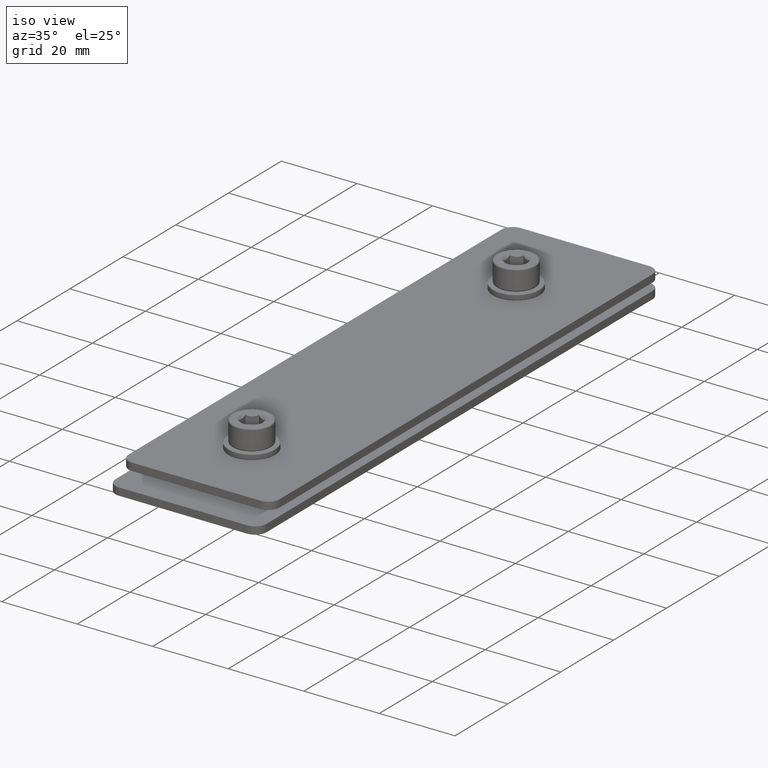
[diagram: clean part render]
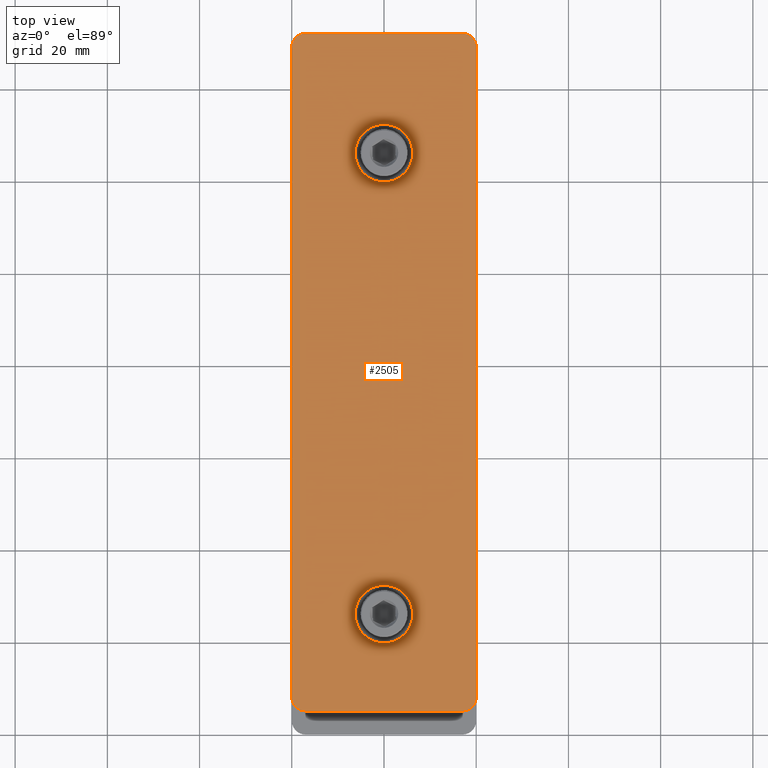
[diagram: tour spotlight — one face highlighted and labeled with its STEP entity id]
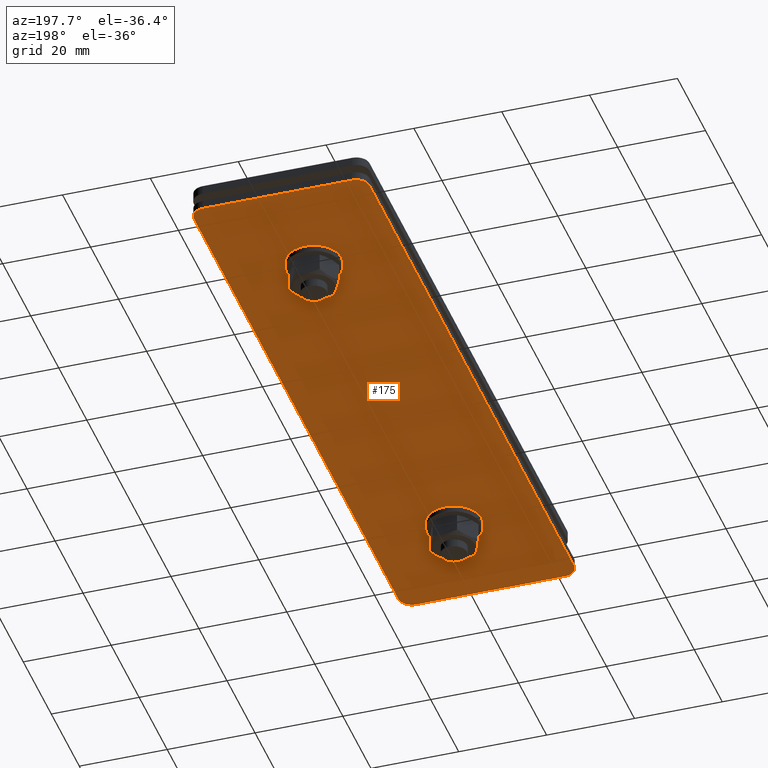
[diagram: tour spotlight — one face highlighted and labeled with its STEP entity id]
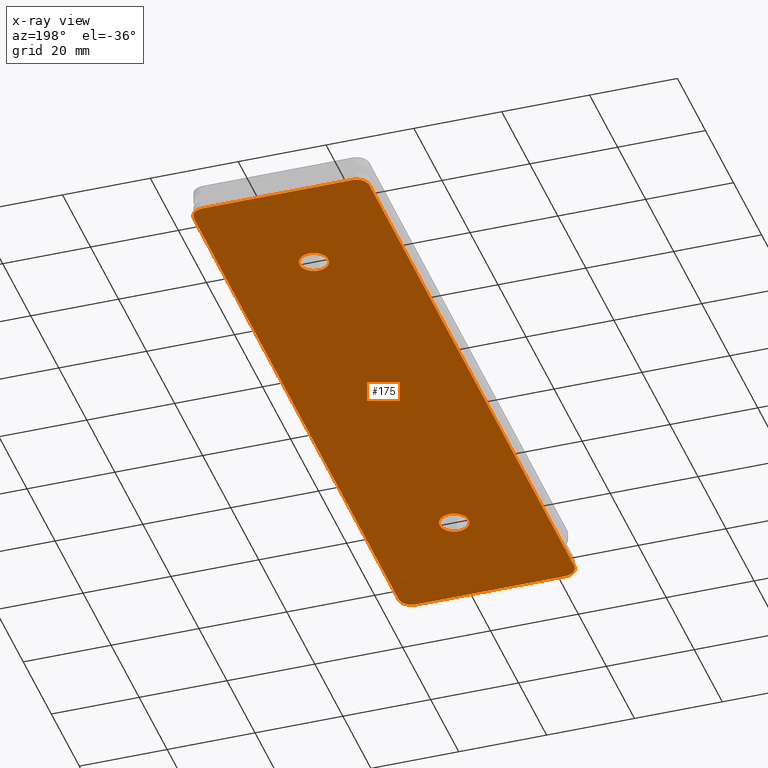
[diagram: x-ray of the same camera — body ghosted, this tour face saturated]
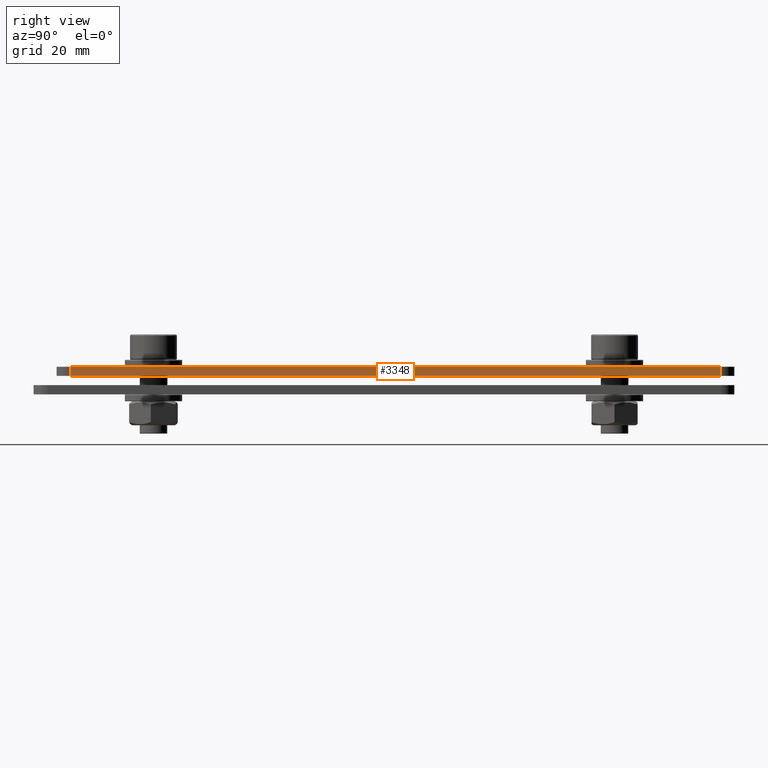
[diagram: tour spotlight — one face highlighted and labeled with its STEP entity id]
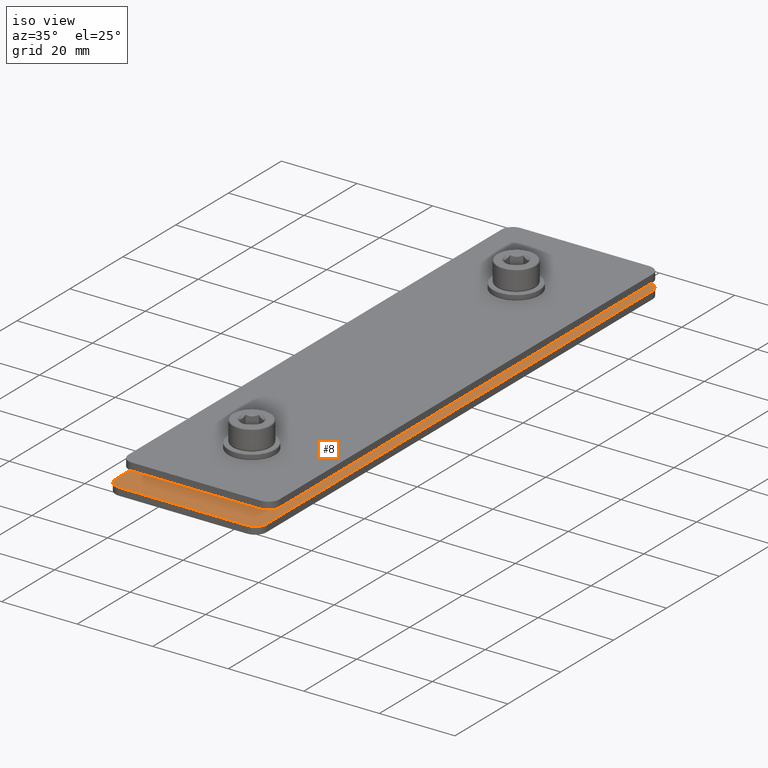
[diagram: tour spotlight — one face highlighted and labeled with its STEP entity id]
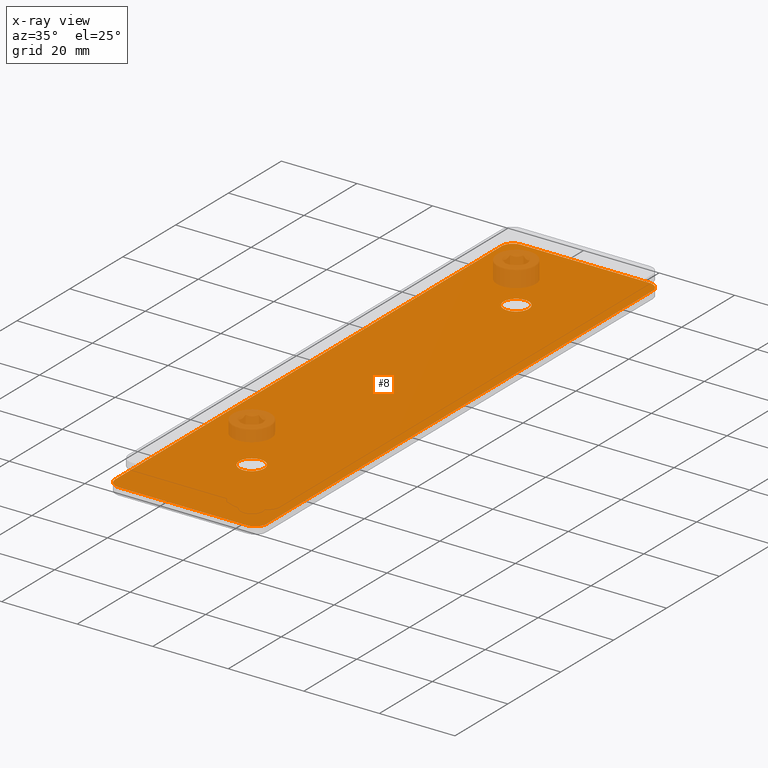
[diagram: x-ray of the same camera — body ghosted, this tour face saturated]
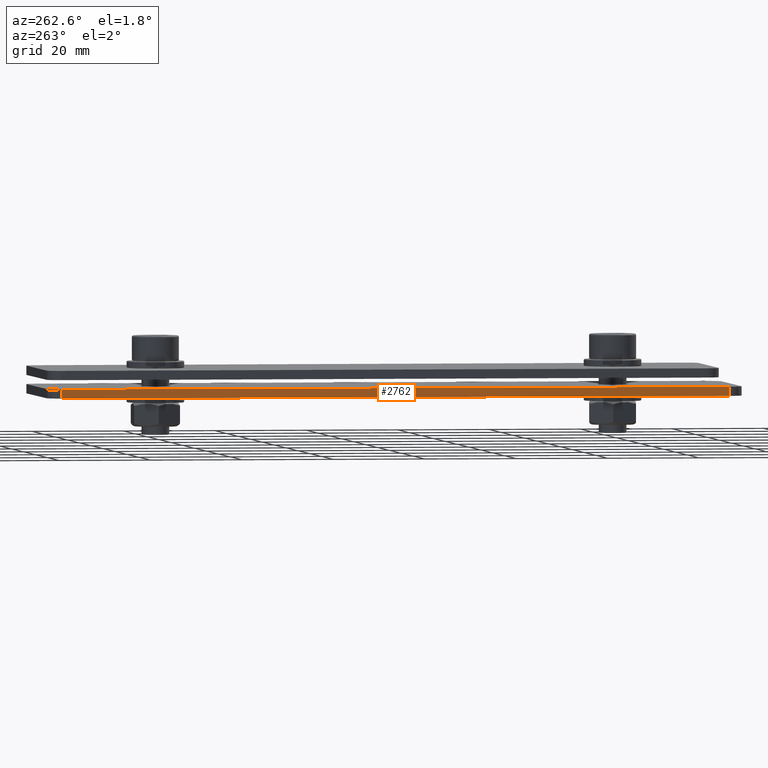
[diagram: tour spotlight — one face highlighted and labeled with its STEP entity id]
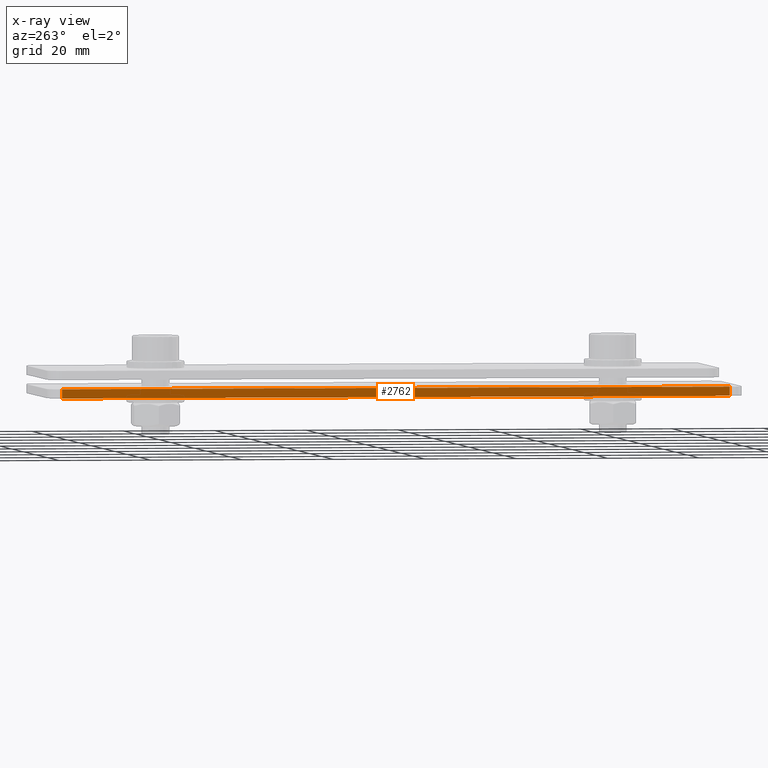
[diagram: x-ray of the same camera — body ghosted, this tour face saturated]
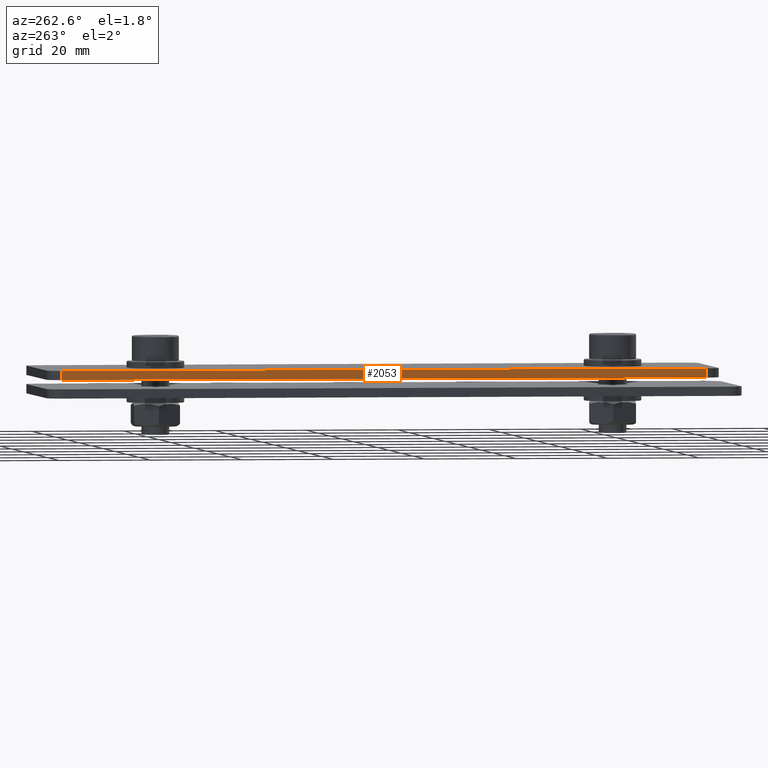
[diagram: tour spotlight — one face highlighted and labeled with its STEP entity id]
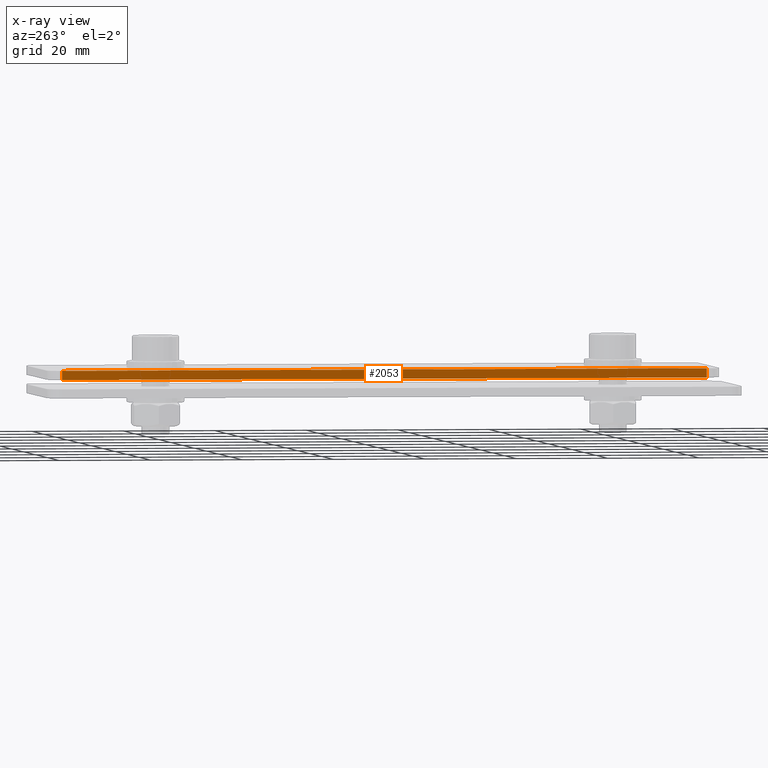
[diagram: x-ray of the same camera — body ghosted, this tour face saturated]
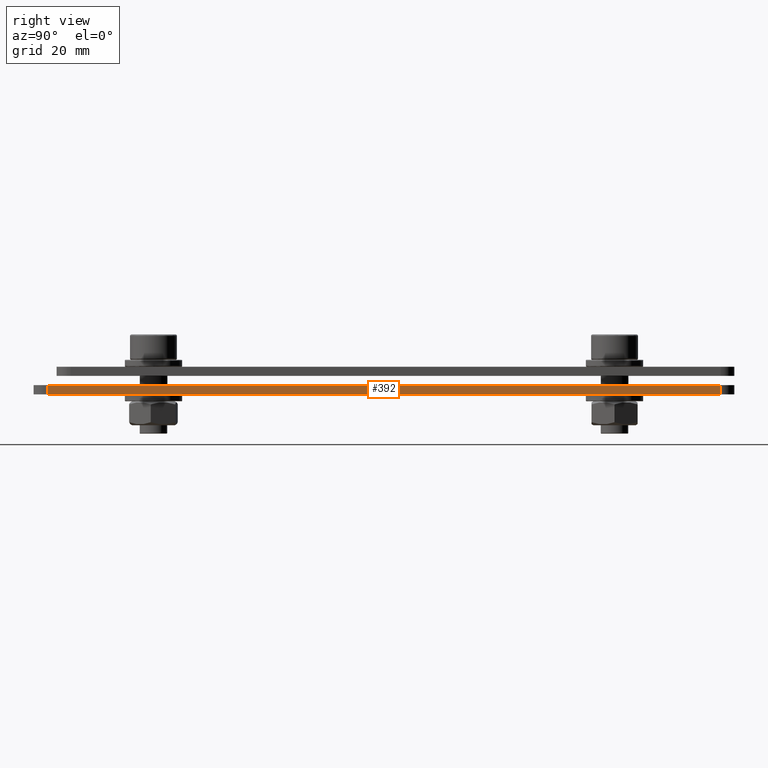
[diagram: tour spotlight — one face highlighted and labeled with its STEP entity id]
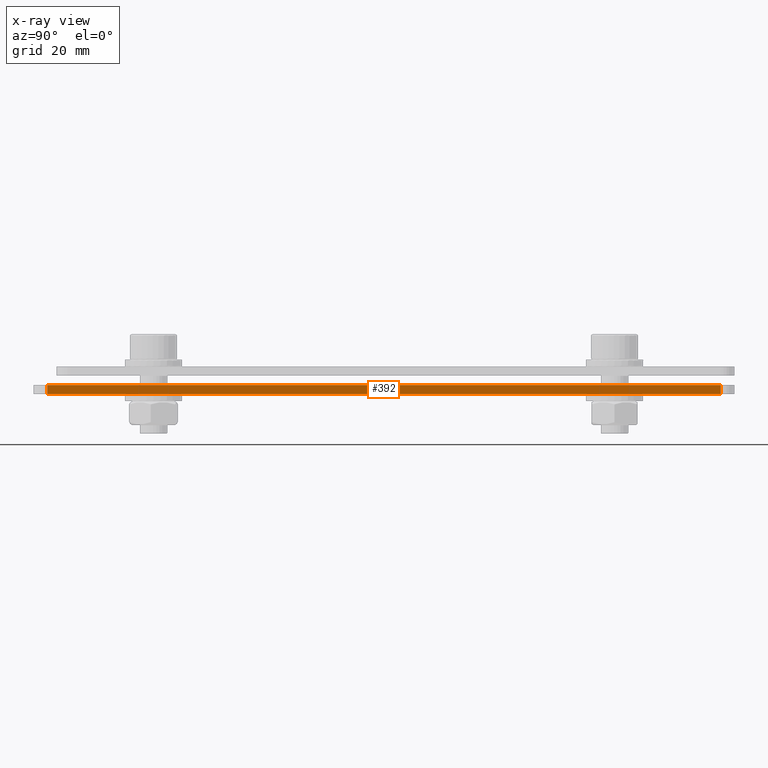
[diagram: x-ray of the same camera — body ghosted, this tour face saturated]
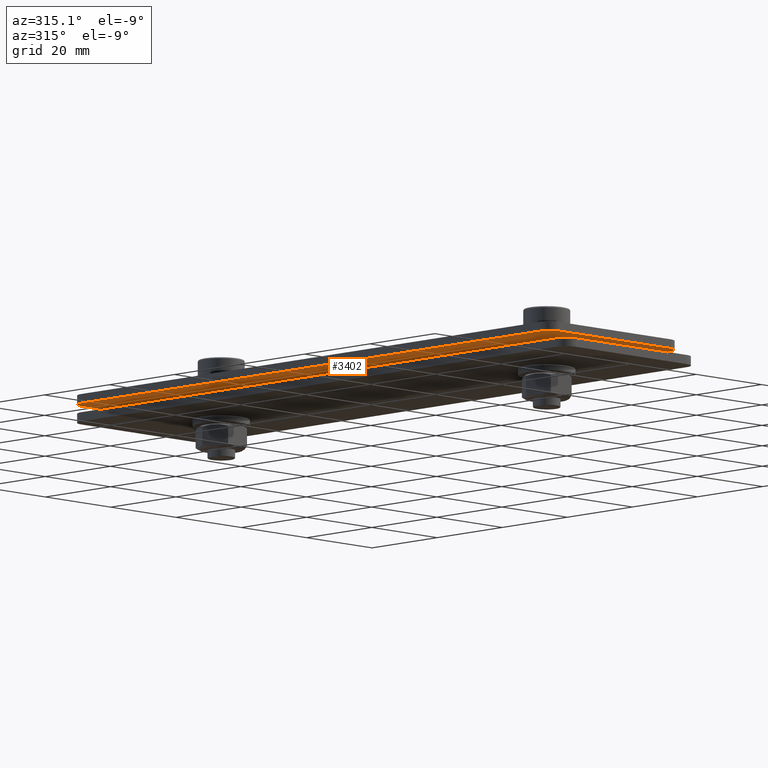
[diagram: tour spotlight — one face highlighted and labeled with its STEP entity id]
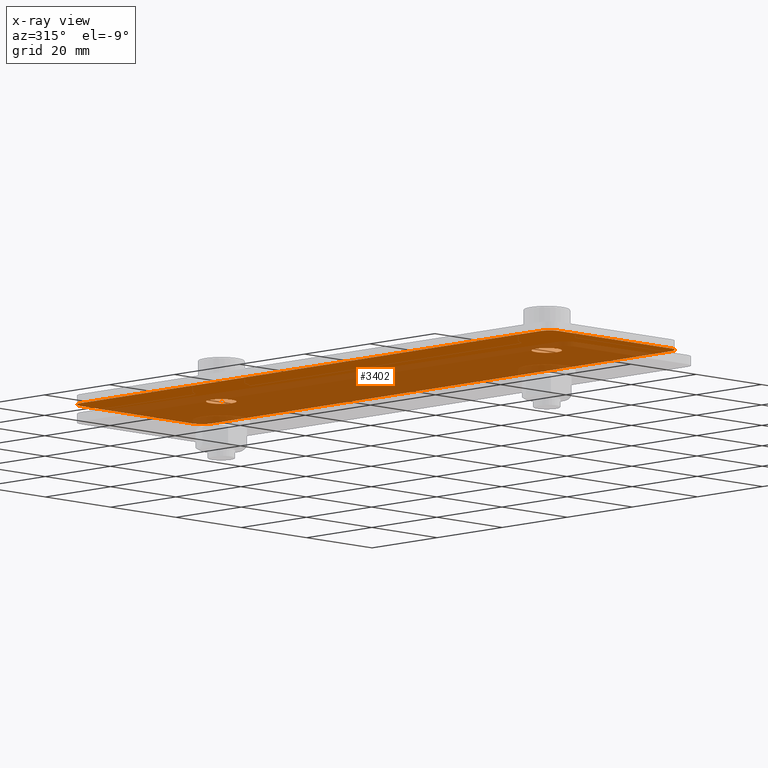
[diagram: x-ray of the same camera — body ghosted, this tour face saturated]
A machine part: a face-by-face anatomy tour. The part has 114 B-rep faces; the first image is the clean iso view, then the 8 largest visible faces are spotlighted one at a time (largest first), each with its STEP entity span.

Face 1 — top view, entity #2505. In plain terms, the highlighted planar face has unit normal (-0, 0, -1).
Definition (entity closure, byte-faithful):
#56 = CIRCLE ( 'NONE', #2208, 3.299999999999997158 ) ;
#124 = AXIS2_PLACEMENT_3D ( 'NONE', #278, #3185, #2515 ) ;
#135 = EDGE_LOOP ( 'NONE', ( #1639 ) ) ;
#148 = EDGE_CURVE ( 'NONE', #3767, #194, #730, .T. ) ;
#155 = CARTESIAN_POINT ( 'NONE',  ( -6.938893903907228378E-15, 152.1999999999999886, 4.000000000000000000 ) ) ;
#168 = VERTEX_POINT ( 'NONE', #3131 ) ;
#187 = VECTOR ( 'NONE', #3293, 1000.000000000000000 ) ;
#194 = VERTEX_POINT ( 'NONE', #2840 ) ;
#233 = DIRECTION ( 'NONE',  ( -1.110223024625156540E-16, -0.000000000000000000, -1.000000000000000000 ) ) ;
#278 = CARTESIAN_POINT ( 'NONE',  ( -37.00000000000001421, 8.000000000000035527, 4.000000000000003553 ) ) ;
#284 = DIRECTION ( 'NONE',  ( -1.110223024625156540E-16, -0.000000000000000000, -1.000000000000000000 ) ) ;
#312 = VERTEX_POINT ( 'NONE', #360 ) ;
#360 = CARTESIAN_POINT ( 'NONE',  ( -40.00000000000001421, 8.000000000000035527, 4.000000000000003553 ) ) ;
#410 = EDGE_CURVE ( 'NONE', #1707, #999, #1153, .T. ) ;
#421 = DIRECTION ( 'NONE',  ( -1.110223024625156540E-16, -0.000000000000000000, -1.000000000000000000 ) ) ;
#478 = EDGE_CURVE ( 'NONE', #3494, #3494, #56, .T. ) ;
#528 = DIRECTION ( 'NONE',  ( -1.110223024625156540E-16, 0.000000000000000000, -1.000000000000000000 ) ) ;
#534 = ORIENTED_EDGE ( 'NONE', *, *, #3597, .F. ) ;
#568 = PLANE ( 'NONE',  #2092 ) ;
#569 = CARTESIAN_POINT ( 'NONE',  ( -20.00000000000001066, 25.99999999999999645, 4.000000000000000000 ) ) ;
#572 = EDGE_LOOP ( 'NONE', ( #2429, #2260, #2494, #534, #2928, #1036, #2552, #1308 ) ) ;
#675 = CARTESIAN_POINT ( 'NONE',  ( -3.000000000000009770, 152.0000000000000000, 4.000000000000000000 ) ) ;
#683 = CIRCLE ( 'NONE', #124, 3.000000000000002665 ) ;
#730 = CIRCLE ( 'NONE', #908, 3.000000000000002665 ) ;
#745 = CARTESIAN_POINT ( 'NONE',  ( -3.000000000000009770, 149.0000000000000284, 4.000000000000000000 ) ) ;
#781 = CARTESIAN_POINT ( 'NONE',  ( -6.938893903907228378E-15, 152.1999999999999886, 4.000000000000000000 ) ) ;
#908 = AXIS2_PLACEMENT_3D ( 'NONE', #1905, #421, #1361 ) ;
#999 = VERTEX_POINT ( 'NONE', #1329 ) ;
#1036 = ORIENTED_EDGE ( 'NONE', *, *, #2435, .F. ) ;
#1065 = DIRECTION ( 'NONE',  ( -1.000000000000000000, 0.000000000000000000, 0.000000000000000000 ) ) ;
#1107 = DIRECTION ( 'NONE',  ( -1.000000000000000000, 0.000000000000000000, 0.000000000000000000 ) ) ;
#1153 = CIRCLE ( 'NONE', #3250, 3.000000000000002665 ) ;
#1308 = ORIENTED_EDGE ( 'NONE', *, *, #1322, .F. ) ;
#1316 = CARTESIAN_POINT ( 'NONE',  ( -23.30000000000000782, 25.99999999999999645, 4.000000000000000000 ) ) ;
#1322 = EDGE_CURVE ( 'NONE', #999, #2256, #3603, .T. ) ;
#1329 = CARTESIAN_POINT ( 'NONE',  ( -37.00000000000001421, 152.0000000000000000, 4.000000000000003553 ) ) ;
#1361 = DIRECTION ( 'NONE',  ( -1.000000000000000000, 0.000000000000000000, 0.000000000000000000 ) ) ;
#1444 = EDGE_CURVE ( 'NONE', #168, #312, #683, .T. ) ;
#1478 = CARTESIAN_POINT ( 'NONE',  ( -37.00000000000001421, 149.0000000000000284, 4.000000000000003553 ) ) ;
#1601 = AXIS2_PLACEMENT_3D ( 'NONE', #569, #284, #1107 ) ;
#1620 = LINE ( 'NONE', #155, #3329 ) ;
#1639 = ORIENTED_EDGE ( 'NONE', *, *, #3679, .T. ) ;
#1671 = FACE_BOUND ( 'NONE', #135, .T. ) ;
#1707 = VERTEX_POINT ( 'NONE', #2546 ) ;
#1730 = CIRCLE ( 'NONE', #2468, 3.000000000000002665 ) ;
#1744 = CARTESIAN_POINT ( 'NONE',  ( -23.30000000000000782, 126.0000000000000000, 4.000000000000000000 ) ) ;
#1753 = CARTESIAN_POINT ( 'NONE',  ( -6.938893903907228378E-15, 5.000000000000004441, 4.000000000000000000 ) ) ;
#1844 = LINE ( 'NONE', #3381, #2391 ) ;
#1905 = CARTESIAN_POINT ( 'NONE',  ( -3.000000000000009770, 8.000000000000007105, 4.000000000000000000 ) ) ;
#1909 = VERTEX_POINT ( 'NONE', #3011 ) ;
#1922 = DIRECTION ( 'NONE',  ( -0.000000000000000000, 1.000000000000000000, -0.000000000000000000 ) ) ;
#1957 = DIRECTION ( 'NONE',  ( 1.000000000000000000, -0.000000000000000000, -1.110223024625156540E-16 ) ) ;
#1989 = CARTESIAN_POINT ( 'NONE',  ( -6.938893903907228378E-15, 8.000000000000007105, 4.000000000000000000 ) ) ;
#2010 = ORIENTED_EDGE ( 'NONE', *, *, #478, .T. ) ;
#2090 = DIRECTION ( 'NONE',  ( -1.110223024625156540E-16, -0.000000000000000000, -1.000000000000000000 ) ) ;
#2092 = AXIS2_PLACEMENT_3D ( 'NONE', #781, #528, #1957 ) ;
#2208 = AXIS2_PLACEMENT_3D ( 'NONE', #2837, #233, #3164 ) ;
#2236 = VERTEX_POINT ( 'NONE', #1316 ) ;
#2256 = VERTEX_POINT ( 'NONE', #675 ) ;
#2260 = ORIENTED_EDGE ( 'NONE', *, *, #3143, .F. ) ;
#2262 = DIRECTION ( 'NONE',  ( -1.000000000000000000, 0.000000000000000000, 1.110223024625156540E-16 ) ) ;
#2391 = VECTOR ( 'NONE', #1922, 1000.000000000000000 ) ;
#2395 = VECTOR ( 'NONE', #2262, 1000.000000000000000 ) ;
#2429 = ORIENTED_EDGE ( 'NONE', *, *, #410, .F. ) ;
#2435 = EDGE_CURVE ( 'NONE', #1909, #3767, #1620, .T. ) ;
#2468 = AXIS2_PLACEMENT_3D ( 'NONE', #745, #3736, #1065 ) ;
#2494 = ORIENTED_EDGE ( 'NONE', *, *, #1444, .F. ) ;
#2505 = ADVANCED_FACE ( 'NONE', ( #3425, #2905, #1671 ), #568, .F. ) ;
#2515 = DIRECTION ( 'NONE',  ( -1.000000000000000000, 0.000000000000000000, 0.000000000000000000 ) ) ;
#2546 = CARTESIAN_POINT ( 'NONE',  ( -40.00000000000001421, 149.0000000000000284, 4.000000000000003553 ) ) ;
#2552 = ORIENTED_EDGE ( 'NONE', *, *, #2786, .F. ) ;
#2750 = DIRECTION ( 'NONE',  ( 0.000000000000000000, -1.000000000000000000, 0.000000000000000000 ) ) ;
#2771 = CARTESIAN_POINT ( 'NONE',  ( -6.938893903907228378E-15, 152.0000000000000000, 4.000000000000000000 ) ) ;
#2786 = EDGE_CURVE ( 'NONE', #2256, #1909, #1730, .T. ) ;
#2837 = CARTESIAN_POINT ( 'NONE',  ( -20.00000000000001066, 126.0000000000000000, 4.000000000000000000 ) ) ;
#2840 = CARTESIAN_POINT ( 'NONE',  ( -3.000000000000009770, 5.000000000000004441, 4.000000000000000000 ) ) ;
#2905 = FACE_BOUND ( 'NONE', #3506, .T. ) ;
#2928 = ORIENTED_EDGE ( 'NONE', *, *, #148, .F. ) ;
#3011 = CARTESIAN_POINT ( 'NONE',  ( -6.938893903907228378E-15, 149.0000000000000000, 4.000000000000000000 ) ) ;
#3131 = CARTESIAN_POINT ( 'NONE',  ( -37.00000000000001421, 5.000000000000004441, 4.000000000000003553 ) ) ;
#3132 = CIRCLE ( 'NONE', #1601, 3.299999999999997158 ) ;
#3143 = EDGE_CURVE ( 'NONE', #312, #1707, #1844, .T. ) ;
#3153 = LINE ( 'NONE', #1753, #2395 ) ;
#3164 = DIRECTION ( 'NONE',  ( -1.000000000000000000, 0.000000000000000000, 0.000000000000000000 ) ) ;
#3185 = DIRECTION ( 'NONE',  ( -1.110223024625156540E-16, -0.000000000000000000, -1.000000000000000000 ) ) ;
#3250 = AXIS2_PLACEMENT_3D ( 'NONE', #1478, #2090, #3269 ) ;
#3269 = DIRECTION ( 'NONE',  ( -1.000000000000000000, 0.000000000000000000, 0.000000000000000000 ) ) ;
#3293 = DIRECTION ( 'NONE',  ( 1.000000000000000000, -0.000000000000000000, -1.110223024625156540E-16 ) ) ;
#3329 = VECTOR ( 'NONE', #2750, 1000.000000000000000 ) ;
#3381 = CARTESIAN_POINT ( 'NONE',  ( -40.00000000000002842, 152.1999999999999886, 4.000000000000003553 ) ) ;
#3425 = FACE_OUTER_BOUND ( 'NONE', #572, .T. ) ;
#3494 = VERTEX_POINT ( 'NONE', #1744 ) ;
#3506 = EDGE_LOOP ( 'NONE', ( #2010 ) ) ;
#3597 = EDGE_CURVE ( 'NONE', #194, #168, #3153, .T. ) ;
#3603 = LINE ( 'NONE', #2771, #187 ) ;
#3679 = EDGE_CURVE ( 'NONE', #2236, #2236, #3132, .T. ) ;
#3736 = DIRECTION ( 'NONE',  ( -1.110223024625156540E-16, -0.000000000000000000, -1.000000000000000000 ) ) ;
#3767 = VERTEX_POINT ( 'NONE', #1989 ) ;

Face 2 — auxiliary view, entity #175. An x-ray twin of the same camera follows (body ghosted, this face saturated) — the face is partly hidden behind the body. In plain terms, the highlighted planar face has unit normal (-0, 0, -1).
Definition (entity closure, byte-faithful):
#10 = VERTEX_POINT ( 'NONE', #2527 ) ;
#31 = EDGE_CURVE ( 'NONE', #299, #299, #2513, .T. ) ;
#33 = VERTEX_POINT ( 'NONE', #2347 ) ;
#35 = DIRECTION ( 'NONE',  ( -1.000000000000000000, 0.000000000000000000, 0.000000000000000000 ) ) ;
#62 = CIRCLE ( 'NONE', #3740, 3.299999999999997158 ) ;
#75 = DIRECTION ( 'NONE',  ( 5.551115123125782702E-17, 0.000000000000000000, 1.000000000000000000 ) ) ;
#83 = VERTEX_POINT ( 'NONE', #575 ) ;
#98 = DIRECTION ( 'NONE',  ( -0.000000000000000000, 1.000000000000000000, -0.000000000000000000 ) ) ;
#107 = LINE ( 'NONE', #3671, #430 ) ;
#129 = AXIS2_PLACEMENT_3D ( 'NONE', #1303, #1870, #2173 ) ;
#167 = CARTESIAN_POINT ( 'NONE',  ( 0.000000000000000000, 3.000000000000030198, -2.000000000000001776 ) ) ;
#171 = EDGE_CURVE ( 'NONE', #2719, #1132, #493, .T. ) ;
#175 = ADVANCED_FACE ( 'NONE', ( #3691, #1669, #1339 ), #443, .T. ) ;
#272 = CARTESIAN_POINT ( 'NONE',  ( -3.000000000000002665, 149.0000000000000000, -2.000000000000001776 ) ) ;
#274 = DIRECTION ( 'NONE',  ( -1.000000000000000000, 0.000000000000000000, 0.000000000000000000 ) ) ;
#299 = VERTEX_POINT ( 'NONE', #1431 ) ;
#386 = EDGE_CURVE ( 'NONE', #83, #33, #2817, .T. ) ;
#430 = VECTOR ( 'NONE', #2201, 1000.000000000000000 ) ;
#443 = PLANE ( 'NONE',  #2082 ) ;
#469 = CARTESIAN_POINT ( 'NONE',  ( -23.30000000000000782, 126.0000000000000000, -2.000000000000001776 ) ) ;
#493 = LINE ( 'NONE', #1632, #3734 ) ;
#504 = DIRECTION ( 'NONE',  ( -5.551115123125782702E-17, -0.000000000000000000, -1.000000000000000000 ) ) ;
#558 = CARTESIAN_POINT ( 'NONE',  ( -3.000000000000002665, 3.000000000000002665, -2.000000000000001776 ) ) ;
#575 = CARTESIAN_POINT ( 'NONE',  ( -40.00000000000000000, 149.0000000000000000, -2.000000000000001776 ) ) ;
#609 = AXIS2_PLACEMENT_3D ( 'NONE', #558, #504, #1716 ) ;
#691 = CARTESIAN_POINT ( 'NONE',  ( -3.000000000000002665, 0.000000000000000000, -2.000000000000001776 ) ) ;
#809 = EDGE_CURVE ( 'NONE', #1547, #2719, #2086, .T. ) ;
#824 = EDGE_CURVE ( 'NONE', #33, #1933, #2022, .T. ) ;
#825 = DIRECTION ( 'NONE',  ( -5.551115123125782702E-17, -0.000000000000000000, -1.000000000000000000 ) ) ;
#850 = AXIS2_PLACEMENT_3D ( 'NONE', #2933, #75, #274 ) ;
#892 = ORIENTED_EDGE ( 'NONE', *, *, #31, .T. ) ;
#1038 = EDGE_CURVE ( 'NONE', #2674, #83, #3091, .T. ) ;
#1132 = VERTEX_POINT ( 'NONE', #3710 ) ;
#1170 = ORIENTED_EDGE ( 'NONE', *, *, #809, .T. ) ;
#1201 = DIRECTION ( 'NONE',  ( -5.551115123125782702E-17, -0.000000000000000000, -1.000000000000000000 ) ) ;
#1218 = AXIS2_PLACEMENT_3D ( 'NONE', #2662, #1201, #2373 ) ;
#1225 = VECTOR ( 'NONE', #98, 1000.000000000000000 ) ;
#1290 = AXIS2_PLACEMENT_3D ( 'NONE', #272, #825, #2950 ) ;
#1303 = CARTESIAN_POINT ( 'NONE',  ( -37.00000000000000000, 3.000000000000002665, -2.000000000000001776 ) ) ;
#1333 = VERTEX_POINT ( 'NONE', #469 ) ;
#1339 = FACE_BOUND ( 'NONE', #1347, .T. ) ;
#1347 = EDGE_LOOP ( 'NONE', ( #892 ) ) ;
#1431 = CARTESIAN_POINT ( 'NONE',  ( -23.30000000000000782, 25.99999999999996803, -2.000000000000001776 ) ) ;
#1465 = ORIENTED_EDGE ( 'NONE', *, *, #2717, .T. ) ;
#1547 = VERTEX_POINT ( 'NONE', #167 ) ;
#1617 = CARTESIAN_POINT ( 'NONE',  ( 0.000000000000000000, 152.1999999999999886, -2.000000000000001776 ) ) ;
#1632 = CARTESIAN_POINT ( 'NONE',  ( 0.000000000000000000, 0.000000000000000000, -2.000000000000001776 ) ) ;
#1669 = FACE_BOUND ( 'NONE', #3797, .T. ) ;
#1716 = DIRECTION ( 'NONE',  ( -1.000000000000000000, 0.000000000000000000, 0.000000000000000000 ) ) ;
#1719 = VECTOR ( 'NONE', #3200, 1000.000000000000000 ) ;
#1756 = ORIENTED_EDGE ( 'NONE', *, *, #824, .T. ) ;
#1802 = ORIENTED_EDGE ( 'NONE', *, *, #3079, .T. ) ;
#1870 = DIRECTION ( 'NONE',  ( -5.551115123125782702E-17, -0.000000000000000000, -1.000000000000000000 ) ) ;
#1918 = CIRCLE ( 'NONE', #129, 3.000000000000002665 ) ;
#1933 = VERTEX_POINT ( 'NONE', #2430 ) ;
#2022 = LINE ( 'NONE', #2560, #1719 ) ;
#2082 = AXIS2_PLACEMENT_3D ( 'NONE', #1617, #2787, #2821 ) ;
#2086 = CIRCLE ( 'NONE', #609, 3.000000000000002665 ) ;
#2173 = DIRECTION ( 'NONE',  ( -1.000000000000000000, 0.000000000000000000, 0.000000000000000000 ) ) ;
#2201 = DIRECTION ( 'NONE',  ( 0.000000000000000000, -1.000000000000000000, 0.000000000000000000 ) ) ;
#2227 = ORIENTED_EDGE ( 'NONE', *, *, #386, .T. ) ;
#2347 = CARTESIAN_POINT ( 'NONE',  ( -37.00000000000000000, 152.0000000000000000, -2.000000000000001776 ) ) ;
#2373 = DIRECTION ( 'NONE',  ( -1.000000000000000000, 0.000000000000000000, 0.000000000000000000 ) ) ;
#2430 = CARTESIAN_POINT ( 'NONE',  ( -3.000000000000002665, 152.0000000000000000, -2.000000000000001776 ) ) ;
#2443 = ORIENTED_EDGE ( 'NONE', *, *, #1038, .T. ) ;
#2513 = CIRCLE ( 'NONE', #850, 3.299999999999997158 ) ;
#2527 = CARTESIAN_POINT ( 'NONE',  ( 0.000000000000000000, 149.0000000000000000, -2.000000000000001776 ) ) ;
#2560 = CARTESIAN_POINT ( 'NONE',  ( 0.000000000000000000, 152.0000000000000000, -2.000000000000001776 ) ) ;
#2662 = CARTESIAN_POINT ( 'NONE',  ( -37.00000000000000000, 149.0000000000000000, -2.000000000000001776 ) ) ;
#2674 = VERTEX_POINT ( 'NONE', #3331 ) ;
#2691 = DIRECTION ( 'NONE',  ( 5.551115123125782702E-17, 0.000000000000000000, 1.000000000000000000 ) ) ;
#2708 = EDGE_LOOP ( 'NONE', ( #3661, #1465, #2443, #2227, #1756, #2734, #1802, #1170 ) ) ;
#2717 = EDGE_CURVE ( 'NONE', #1132, #2674, #1918, .T. ) ;
#2719 = VERTEX_POINT ( 'NONE', #691 ) ;
#2734 = ORIENTED_EDGE ( 'NONE', *, *, #3285, .T. ) ;
#2787 = DIRECTION ( 'NONE',  ( -5.551115123125782702E-17, 0.000000000000000000, -1.000000000000000000 ) ) ;
#2817 = CIRCLE ( 'NONE', #1218, 3.000000000000002665 ) ;
#2821 = DIRECTION ( 'NONE',  ( 1.000000000000000000, -0.000000000000000000, -5.551115123125782702E-17 ) ) ;
#2933 = CARTESIAN_POINT ( 'NONE',  ( -20.00000000000001066, 25.99999999999996803, -2.000000000000001776 ) ) ;
#2950 = DIRECTION ( 'NONE',  ( -1.000000000000000000, 0.000000000000000000, 0.000000000000000000 ) ) ;
#3007 = CARTESIAN_POINT ( 'NONE',  ( -20.00000000000001066, 126.0000000000000000, -2.000000000000001776 ) ) ;
#3079 = EDGE_CURVE ( 'NONE', #10, #1547, #107, .T. ) ;
#3090 = CIRCLE ( 'NONE', #1290, 3.000000000000002665 ) ;
#3091 = LINE ( 'NONE', #3648, #1225 ) ;
#3186 = ORIENTED_EDGE ( 'NONE', *, *, #3422, .T. ) ;
#3200 = DIRECTION ( 'NONE',  ( 1.000000000000000000, -0.000000000000000000, -5.551115123125782702E-17 ) ) ;
#3285 = EDGE_CURVE ( 'NONE', #1933, #10, #3090, .T. ) ;
#3331 = CARTESIAN_POINT ( 'NONE',  ( -40.00000000000000000, 3.000000000000002665, -2.000000000000001776 ) ) ;
#3422 = EDGE_CURVE ( 'NONE', #1333, #1333, #62, .T. ) ;
#3648 = CARTESIAN_POINT ( 'NONE',  ( -40.00000000000001421, 152.1999999999999886, -2.000000000000001776 ) ) ;
#3658 = DIRECTION ( 'NONE',  ( -1.000000000000000000, 0.000000000000000000, 5.551115123125782702E-17 ) ) ;
#3661 = ORIENTED_EDGE ( 'NONE', *, *, #171, .T. ) ;
#3671 = CARTESIAN_POINT ( 'NONE',  ( 0.000000000000000000, 152.1999999999999886, -2.000000000000001776 ) ) ;
#3691 = FACE_OUTER_BOUND ( 'NONE', #2708, .T. ) ;
#3710 = CARTESIAN_POINT ( 'NONE',  ( -37.00000000000000000, 0.000000000000000000, -2.000000000000001776 ) ) ;
#3734 = VECTOR ( 'NONE', #3658, 1000.000000000000000 ) ;
#3740 = AXIS2_PLACEMENT_3D ( 'NONE', #3007, #2691, #35 ) ;
#3797 = EDGE_LOOP ( 'NONE', ( #3186 ) ) ;

Face 3 — right view, entity #3348. In plain terms, the highlighted planar face has unit normal (1, 0, -0).
Definition (entity closure, byte-faithful):
#155 = CARTESIAN_POINT ( 'NONE',  ( -6.938893903907228378E-15, 152.1999999999999886, 4.000000000000000000 ) ) ;
#172 = CARTESIAN_POINT ( 'NONE',  ( -6.938893903907228378E-15, 149.0000000000000000, 1.999999999999998224 ) ) ;
#290 = FACE_OUTER_BOUND ( 'NONE', #3532, .T. ) ;
#441 = ORIENTED_EDGE ( 'NONE', *, *, #1156, .T. ) ;
#556 = DIRECTION ( 'NONE',  ( 1.110223024625156540E-16, 0.000000000000000000, 1.000000000000000000 ) ) ;
#842 = DIRECTION ( 'NONE',  ( 1.000000000000000000, 0.000000000000000000, -1.110223024625156540E-16 ) ) ;
#1055 = VERTEX_POINT ( 'NONE', #1271 ) ;
#1062 = EDGE_CURVE ( 'NONE', #3274, #1055, #2265, .T. ) ;
#1086 = DIRECTION ( 'NONE',  ( 0.000000000000000000, -1.000000000000000000, 0.000000000000000000 ) ) ;
#1126 = CARTESIAN_POINT ( 'NONE',  ( -6.938893903907228378E-15, 152.1999999999999886, 1.999999999999998224 ) ) ;
#1156 = EDGE_CURVE ( 'NONE', #3274, #1909, #2810, .T. ) ;
#1271 = CARTESIAN_POINT ( 'NONE',  ( -6.938893903907228378E-15, 8.000000000000007105, 1.999999999999998224 ) ) ;
#1304 = EDGE_CURVE ( 'NONE', #1055, #3767, #3644, .T. ) ;
#1443 = CARTESIAN_POINT ( 'NONE',  ( -6.938893903907228378E-15, 149.0000000000000000, 1.999999999999998224 ) ) ;
#1535 = VECTOR ( 'NONE', #1086, 1000.000000000000000 ) ;
#1620 = LINE ( 'NONE', #155, #3329 ) ;
#1908 = VECTOR ( 'NONE', #3154, 1000.000000000000000 ) ;
#1909 = VERTEX_POINT ( 'NONE', #3011 ) ;
#1989 = CARTESIAN_POINT ( 'NONE',  ( -6.938893903907228378E-15, 8.000000000000007105, 4.000000000000000000 ) ) ;
#2001 = ORIENTED_EDGE ( 'NONE', *, *, #1304, .F. ) ;
#2265 = LINE ( 'NONE', #1126, #1535 ) ;
#2396 = VECTOR ( 'NONE', #2788, 1000.000000000000000 ) ;
#2435 = EDGE_CURVE ( 'NONE', #1909, #3767, #1620, .T. ) ;
#2575 = AXIS2_PLACEMENT_3D ( 'NONE', #3769, #842, #556 ) ;
#2750 = DIRECTION ( 'NONE',  ( 0.000000000000000000, -1.000000000000000000, 0.000000000000000000 ) ) ;
#2788 = DIRECTION ( 'NONE',  ( 1.110223024625156540E-16, 0.000000000000000000, 1.000000000000000000 ) ) ;
#2810 = LINE ( 'NONE', #172, #1908 ) ;
#2888 = PLANE ( 'NONE',  #2575 ) ;
#3011 = CARTESIAN_POINT ( 'NONE',  ( -6.938893903907228378E-15, 149.0000000000000000, 4.000000000000000000 ) ) ;
#3154 = DIRECTION ( 'NONE',  ( 1.110223024625156540E-16, 0.000000000000000000, 1.000000000000000000 ) ) ;
#3274 = VERTEX_POINT ( 'NONE', #1443 ) ;
#3329 = VECTOR ( 'NONE', #2750, 1000.000000000000000 ) ;
#3348 = ADVANCED_FACE ( 'NONE', ( #290 ), #2888, .T. ) ;
#3429 = ORIENTED_EDGE ( 'NONE', *, *, #1062, .F. ) ;
#3470 = ORIENTED_EDGE ( 'NONE', *, *, #2435, .T. ) ;
#3532 = EDGE_LOOP ( 'NONE', ( #3470, #2001, #3429, #441 ) ) ;
#3644 = LINE ( 'NONE', #3660, #2396 ) ;
#3660 = CARTESIAN_POINT ( 'NONE',  ( -6.938893903907228378E-15, 8.000000000000007105, 1.999999999999998224 ) ) ;
#3767 = VERTEX_POINT ( 'NONE', #1989 ) ;
#3769 = CARTESIAN_POINT ( 'NONE',  ( -6.938893903907228378E-15, 152.1999999999999886, 1.999999999999998224 ) ) ;

Face 4 — iso view, entity #8. An x-ray twin of the same camera follows (body ghosted, this face saturated) — the face is partly hidden behind the body. In plain terms, the highlighted planar face has unit normal (-0, 0, -1).
Definition (entity closure, byte-faithful):
#8 = ADVANCED_FACE ( 'NONE', ( #3108, #2250, #214 ), #3159, .F. ) ;
#64 = CIRCLE ( 'NONE', #617, 3.299999999999997158 ) ;
#89 = DIRECTION ( 'NONE',  ( -5.551115123125782702E-17, -0.000000000000000000, -1.000000000000000000 ) ) ;
#121 = DIRECTION ( 'NONE',  ( -0.000000000000000000, 1.000000000000000000, -0.000000000000000000 ) ) ;
#142 = DIRECTION ( 'NONE',  ( -5.551115123125782702E-17, -0.000000000000000000, -1.000000000000000000 ) ) ;
#191 = CARTESIAN_POINT ( 'NONE',  ( 0.000000000000000000, 152.0000000000000000, 0.000000000000000000 ) ) ;
#197 = DIRECTION ( 'NONE',  ( 1.000000000000000000, -0.000000000000000000, -5.551115123125782702E-17 ) ) ;
#214 = FACE_BOUND ( 'NONE', #329, .T. ) ;
#229 = DIRECTION ( 'NONE',  ( -5.551115123125782702E-17, -0.000000000000000000, -1.000000000000000000 ) ) ;
#268 = EDGE_CURVE ( 'NONE', #362, #2873, #2263, .T. ) ;
#289 = DIRECTION ( 'NONE',  ( -1.000000000000000000, 0.000000000000000000, 5.551115123125782702E-17 ) ) ;
#310 = VECTOR ( 'NONE', #3692, 1000.000000000000000 ) ;
#329 = EDGE_LOOP ( 'NONE', ( #760 ) ) ;
#362 = VERTEX_POINT ( 'NONE', #1530 ) ;
#394 = ORIENTED_EDGE ( 'NONE', *, *, #1300, .F. ) ;
#404 = DIRECTION ( 'NONE',  ( -5.551115123125782702E-17, -0.000000000000000000, -1.000000000000000000 ) ) ;
#423 = VERTEX_POINT ( 'NONE', #1183 ) ;
#425 = DIRECTION ( 'NONE',  ( 1.000000000000000000, -0.000000000000000000, -5.551115123125782702E-17 ) ) ;
#464 = EDGE_CURVE ( 'NONE', #2873, #3246, #506, .T. ) ;
#494 = AXIS2_PLACEMENT_3D ( 'NONE', #3040, #89, #1899 ) ;
#506 = LINE ( 'NONE', #1951, #1714 ) ;
#566 = EDGE_CURVE ( 'NONE', #1659, #1939, #1895, .T. ) ;
#567 = VERTEX_POINT ( 'NONE', #2183 ) ;
#617 = AXIS2_PLACEMENT_3D ( 'NONE', #1384, #229, #289 ) ;
#623 = EDGE_CURVE ( 'NONE', #815, #815, #1352, .T. ) ;
#647 = CARTESIAN_POINT ( 'NONE',  ( -3.000000000000002665, 149.0000000000000000, 0.000000000000000000 ) ) ;
#760 = ORIENTED_EDGE ( 'NONE', *, *, #2125, .T. ) ;
#785 = ORIENTED_EDGE ( 'NONE', *, *, #623, .T. ) ;
#815 = VERTEX_POINT ( 'NONE', #1259 ) ;
#890 = DIRECTION ( 'NONE',  ( -1.000000000000000000, 0.000000000000000000, 5.551115123125782702E-17 ) ) ;
#1016 = EDGE_LOOP ( 'NONE', ( #1892, #1597, #2594, #2191, #394, #1715, #1630, #1146 ) ) ;
#1074 = DIRECTION ( 'NONE',  ( -5.551115123125782702E-17, 0.000000000000000000, -1.000000000000000000 ) ) ;
#1096 = CIRCLE ( 'NONE', #3387, 3.000000000000002665 ) ;
#1104 = CIRCLE ( 'NONE', #494, 3.000000000000002665 ) ;
#1146 = ORIENTED_EDGE ( 'NONE', *, *, #2412, .F. ) ;
#1148 = CARTESIAN_POINT ( 'NONE',  ( 0.000000000000000000, 3.000000000000030198, 0.000000000000000000 ) ) ;
#1183 = CARTESIAN_POINT ( 'NONE',  ( -37.00000000000000000, 152.0000000000000000, 0.000000000000000000 ) ) ;
#1239 = CARTESIAN_POINT ( 'NONE',  ( -37.00000000000000000, 149.0000000000000000, 0.000000000000000000 ) ) ;
#1259 = CARTESIAN_POINT ( 'NONE',  ( -23.30000000000000782, 126.0000000000000000, 1.831867990631506714E-16 ) ) ;
#1262 = DIRECTION ( 'NONE',  ( -5.551115123125782702E-17, -0.000000000000000000, -1.000000000000000000 ) ) ;
#1300 = EDGE_CURVE ( 'NONE', #3246, #567, #1096, .T. ) ;
#1352 = CIRCLE ( 'NONE', #3631, 3.299999999999997158 ) ;
#1384 = CARTESIAN_POINT ( 'NONE',  ( -20.00000000000001066, 25.99999999999996803, 0.000000000000000000 ) ) ;
#1403 = AXIS2_PLACEMENT_3D ( 'NONE', #2865, #1074, #197 ) ;
#1419 = EDGE_CURVE ( 'NONE', #567, #3351, #1764, .T. ) ;
#1525 = CARTESIAN_POINT ( 'NONE',  ( -40.00000000000000000, 149.0000000000000000, 0.000000000000000000 ) ) ;
#1530 = CARTESIAN_POINT ( 'NONE',  ( -3.000000000000002665, 152.0000000000000000, 0.000000000000000000 ) ) ;
#1550 = VERTEX_POINT ( 'NONE', #2723 ) ;
#1596 = VECTOR ( 'NONE', #121, 1000.000000000000000 ) ;
#1597 = ORIENTED_EDGE ( 'NONE', *, *, #566, .F. ) ;
#1630 = ORIENTED_EDGE ( 'NONE', *, *, #268, .F. ) ;
#1659 = VERTEX_POINT ( 'NONE', #3343 ) ;
#1714 = VECTOR ( 'NONE', #2311, 1000.000000000000000 ) ;
#1715 = ORIENTED_EDGE ( 'NONE', *, *, #464, .F. ) ;
#1764 = LINE ( 'NONE', #2872, #310 ) ;
#1892 = ORIENTED_EDGE ( 'NONE', *, *, #1960, .F. ) ;
#1895 = LINE ( 'NONE', #2450, #1596 ) ;
#1899 = DIRECTION ( 'NONE',  ( -1.000000000000000000, 0.000000000000000000, 5.551115123125782702E-17 ) ) ;
#1939 = VERTEX_POINT ( 'NONE', #1525 ) ;
#1942 = EDGE_LOOP ( 'NONE', ( #785 ) ) ;
#1951 = CARTESIAN_POINT ( 'NONE',  ( 0.000000000000000000, 152.1999999999999886, 0.000000000000000000 ) ) ;
#1960 = EDGE_CURVE ( 'NONE', #1939, #423, #2957, .T. ) ;
#2032 = AXIS2_PLACEMENT_3D ( 'NONE', #1239, #2368, #2675 ) ;
#2125 = EDGE_CURVE ( 'NONE', #1550, #1550, #64, .T. ) ;
#2136 = DIRECTION ( 'NONE',  ( -1.000000000000000000, 0.000000000000000000, 5.551115123125782702E-17 ) ) ;
#2183 = CARTESIAN_POINT ( 'NONE',  ( -3.000000000000002665, 0.000000000000000000, 0.000000000000000000 ) ) ;
#2191 = ORIENTED_EDGE ( 'NONE', *, *, #1419, .F. ) ;
#2192 = LINE ( 'NONE', #191, #2707 ) ;
#2250 = FACE_BOUND ( 'NONE', #1942, .T. ) ;
#2263 = CIRCLE ( 'NONE', #3435, 3.000000000000002665 ) ;
#2311 = DIRECTION ( 'NONE',  ( 0.000000000000000000, -1.000000000000000000, 0.000000000000000000 ) ) ;
#2368 = DIRECTION ( 'NONE',  ( -5.551115123125782702E-17, -0.000000000000000000, -1.000000000000000000 ) ) ;
#2412 = EDGE_CURVE ( 'NONE', #423, #362, #2192, .T. ) ;
#2450 = CARTESIAN_POINT ( 'NONE',  ( -40.00000000000001421, 152.1999999999999886, 0.000000000000000000 ) ) ;
#2594 = ORIENTED_EDGE ( 'NONE', *, *, #3117, .F. ) ;
#2675 = DIRECTION ( 'NONE',  ( -1.000000000000000000, 0.000000000000000000, 5.551115123125782702E-17 ) ) ;
#2707 = VECTOR ( 'NONE', #425, 1000.000000000000000 ) ;
#2723 = CARTESIAN_POINT ( 'NONE',  ( -23.30000000000000782, 25.99999999999996803, 1.831867990631506714E-16 ) ) ;
#2738 = DIRECTION ( 'NONE',  ( -1.000000000000000000, 0.000000000000000000, 5.551115123125782702E-17 ) ) ;
#2865 = CARTESIAN_POINT ( 'NONE',  ( 0.000000000000000000, 152.1999999999999886, 0.000000000000000000 ) ) ;
#2872 = CARTESIAN_POINT ( 'NONE',  ( 0.000000000000000000, 0.000000000000000000, 0.000000000000000000 ) ) ;
#2873 = VERTEX_POINT ( 'NONE', #2874 ) ;
#2874 = CARTESIAN_POINT ( 'NONE',  ( 0.000000000000000000, 149.0000000000000000, 0.000000000000000000 ) ) ;
#2957 = CIRCLE ( 'NONE', #2032, 3.000000000000002665 ) ;
#3040 = CARTESIAN_POINT ( 'NONE',  ( -37.00000000000000000, 3.000000000000002665, 0.000000000000000000 ) ) ;
#3046 = CARTESIAN_POINT ( 'NONE',  ( -3.000000000000002665, 3.000000000000002665, 0.000000000000000000 ) ) ;
#3108 = FACE_OUTER_BOUND ( 'NONE', #1016, .T. ) ;
#3117 = EDGE_CURVE ( 'NONE', #3351, #1659, #1104, .T. ) ;
#3159 = PLANE ( 'NONE',  #1403 ) ;
#3217 = CARTESIAN_POINT ( 'NONE',  ( -37.00000000000000000, 0.000000000000000000, 0.000000000000000000 ) ) ;
#3246 = VERTEX_POINT ( 'NONE', #1148 ) ;
#3343 = CARTESIAN_POINT ( 'NONE',  ( -40.00000000000000000, 3.000000000000002665, 0.000000000000000000 ) ) ;
#3351 = VERTEX_POINT ( 'NONE', #3217 ) ;
#3376 = CARTESIAN_POINT ( 'NONE',  ( -20.00000000000001066, 126.0000000000000000, 0.000000000000000000 ) ) ;
#3387 = AXIS2_PLACEMENT_3D ( 'NONE', #3046, #404, #2136 ) ;
#3435 = AXIS2_PLACEMENT_3D ( 'NONE', #647, #1262, #890 ) ;
#3631 = AXIS2_PLACEMENT_3D ( 'NONE', #3376, #142, #2738 ) ;
#3692 = DIRECTION ( 'NONE',  ( -1.000000000000000000, 0.000000000000000000, 5.551115123125782702E-17 ) ) ;

Face 5 — auxiliary view, entity #2762. An x-ray twin of the same camera follows (body ghosted, this face saturated) — the face is partly hidden behind the body. In plain terms, the highlighted planar face has unit normal (-1, 0, 0).
Definition (entity closure, byte-faithful):
#69 = AXIS2_PLACEMENT_3D ( 'NONE', #3690, #442, #972 ) ;
#83 = VERTEX_POINT ( 'NONE', #575 ) ;
#98 = DIRECTION ( 'NONE',  ( -0.000000000000000000, 1.000000000000000000, -0.000000000000000000 ) ) ;
#121 = DIRECTION ( 'NONE',  ( -0.000000000000000000, 1.000000000000000000, -0.000000000000000000 ) ) ;
#123 = VECTOR ( 'NONE', #2101, 1000.000000000000000 ) ;
#212 = LINE ( 'NONE', #1027, #987 ) ;
#391 = LINE ( 'NONE', #1521, #123 ) ;
#402 = PLANE ( 'NONE',  #69 ) ;
#442 = DIRECTION ( 'NONE',  ( -1.000000000000000000, 0.000000000000000000, 5.551115123125782702E-17 ) ) ;
#566 = EDGE_CURVE ( 'NONE', #1659, #1939, #1895, .T. ) ;
#575 = CARTESIAN_POINT ( 'NONE',  ( -40.00000000000000000, 149.0000000000000000, -2.000000000000001776 ) ) ;
#972 = DIRECTION ( 'NONE',  ( -5.551115123125782702E-17, 0.000000000000000000, -1.000000000000000000 ) ) ;
#987 = VECTOR ( 'NONE', #2187, 1000.000000000000000 ) ;
#1027 = CARTESIAN_POINT ( 'NONE',  ( -40.00000000000000000, 3.000000000000002665, -2.000000000000001776 ) ) ;
#1029 = EDGE_LOOP ( 'NONE', ( #1861, #3195, #1655, #2727 ) ) ;
#1038 = EDGE_CURVE ( 'NONE', #2674, #83, #3091, .T. ) ;
#1225 = VECTOR ( 'NONE', #98, 1000.000000000000000 ) ;
#1338 = FACE_OUTER_BOUND ( 'NONE', #1029, .T. ) ;
#1521 = CARTESIAN_POINT ( 'NONE',  ( -40.00000000000000000, 149.0000000000000000, -2.000000000000001776 ) ) ;
#1525 = CARTESIAN_POINT ( 'NONE',  ( -40.00000000000000000, 149.0000000000000000, 0.000000000000000000 ) ) ;
#1596 = VECTOR ( 'NONE', #121, 1000.000000000000000 ) ;
#1655 = ORIENTED_EDGE ( 'NONE', *, *, #566, .T. ) ;
#1659 = VERTEX_POINT ( 'NONE', #3343 ) ;
#1861 = ORIENTED_EDGE ( 'NONE', *, *, #1038, .F. ) ;
#1895 = LINE ( 'NONE', #2450, #1596 ) ;
#1939 = VERTEX_POINT ( 'NONE', #1525 ) ;
#2101 = DIRECTION ( 'NONE',  ( 5.551115123125782702E-17, 0.000000000000000000, 1.000000000000000000 ) ) ;
#2187 = DIRECTION ( 'NONE',  ( -5.551115123125782702E-17, -0.000000000000000000, -1.000000000000000000 ) ) ;
#2450 = CARTESIAN_POINT ( 'NONE',  ( -40.00000000000001421, 152.1999999999999886, 0.000000000000000000 ) ) ;
#2674 = VERTEX_POINT ( 'NONE', #3331 ) ;
#2727 = ORIENTED_EDGE ( 'NONE', *, *, #3398, .F. ) ;
#2762 = ADVANCED_FACE ( 'NONE', ( #1338 ), #402, .T. ) ;
#3091 = LINE ( 'NONE', #3648, #1225 ) ;
#3182 = EDGE_CURVE ( 'NONE', #1659, #2674, #212, .T. ) ;
#3195 = ORIENTED_EDGE ( 'NONE', *, *, #3182, .F. ) ;
#3331 = CARTESIAN_POINT ( 'NONE',  ( -40.00000000000000000, 3.000000000000002665, -2.000000000000001776 ) ) ;
#3343 = CARTESIAN_POINT ( 'NONE',  ( -40.00000000000000000, 3.000000000000002665, 0.000000000000000000 ) ) ;
#3398 = EDGE_CURVE ( 'NONE', #83, #1939, #391, .T. ) ;
#3648 = CARTESIAN_POINT ( 'NONE',  ( -40.00000000000001421, 152.1999999999999886, -2.000000000000001776 ) ) ;
#3690 = CARTESIAN_POINT ( 'NONE',  ( -40.00000000000001421, 152.1999999999999886, -2.000000000000001776 ) ) ;

Face 6 — auxiliary view, entity #2053. An x-ray twin of the same camera follows (body ghosted, this face saturated) — the face is partly hidden behind the body. In plain terms, the highlighted planar face has unit normal (-1, 0, 0).
Definition (entity closure, byte-faithful):
#174 = DIRECTION ( 'NONE',  ( -1.000000000000000000, 0.000000000000000000, 1.110223024625156540E-16 ) ) ;
#237 = VERTEX_POINT ( 'NONE', #584 ) ;
#312 = VERTEX_POINT ( 'NONE', #360 ) ;
#360 = CARTESIAN_POINT ( 'NONE',  ( -40.00000000000001421, 8.000000000000035527, 4.000000000000003553 ) ) ;
#367 = EDGE_CURVE ( 'NONE', #237, #1707, #953, .T. ) ;
#584 = CARTESIAN_POINT ( 'NONE',  ( -40.00000000000001421, 149.0000000000000284, 2.000000000000001776 ) ) ;
#717 = DIRECTION ( 'NONE',  ( -1.110223024625156540E-16, 0.000000000000000000, -1.000000000000000000 ) ) ;
#869 = DIRECTION ( 'NONE',  ( -1.110223024625156540E-16, -0.000000000000000000, -1.000000000000000000 ) ) ;
#936 = DIRECTION ( 'NONE',  ( -0.000000000000000000, 1.000000000000000000, -0.000000000000000000 ) ) ;
#953 = LINE ( 'NONE', #1497, #2388 ) ;
#962 = CARTESIAN_POINT ( 'NONE',  ( -40.00000000000001421, 8.000000000000035527, 2.000000000000001776 ) ) ;
#1048 = VERTEX_POINT ( 'NONE', #962 ) ;
#1409 = VECTOR ( 'NONE', #869, 1000.000000000000000 ) ;
#1497 = CARTESIAN_POINT ( 'NONE',  ( -40.00000000000001421, 149.0000000000000284, 2.000000000000001776 ) ) ;
#1707 = VERTEX_POINT ( 'NONE', #2546 ) ;
#1780 = EDGE_CURVE ( 'NONE', #312, #1048, #2894, .T. ) ;
#1789 = DIRECTION ( 'NONE',  ( 1.110223024625156540E-16, 0.000000000000000000, 1.000000000000000000 ) ) ;
#1837 = ORIENTED_EDGE ( 'NONE', *, *, #3143, .T. ) ;
#1844 = LINE ( 'NONE', #3381, #2391 ) ;
#1856 = ORIENTED_EDGE ( 'NONE', *, *, #1780, .F. ) ;
#1915 = CARTESIAN_POINT ( 'NONE',  ( -40.00000000000002842, 152.1999999999999886, 2.000000000000001776 ) ) ;
#1922 = DIRECTION ( 'NONE',  ( -0.000000000000000000, 1.000000000000000000, -0.000000000000000000 ) ) ;
#2053 = ADVANCED_FACE ( 'NONE', ( #2795 ), #3650, .T. ) ;
#2055 = CARTESIAN_POINT ( 'NONE',  ( -40.00000000000002842, 152.1999999999999886, 2.000000000000001776 ) ) ;
#2388 = VECTOR ( 'NONE', #1789, 1000.000000000000000 ) ;
#2391 = VECTOR ( 'NONE', #1922, 1000.000000000000000 ) ;
#2419 = LINE ( 'NONE', #2055, #2883 ) ;
#2526 = AXIS2_PLACEMENT_3D ( 'NONE', #1915, #174, #717 ) ;
#2546 = CARTESIAN_POINT ( 'NONE',  ( -40.00000000000001421, 149.0000000000000284, 4.000000000000003553 ) ) ;
#2617 = EDGE_CURVE ( 'NONE', #1048, #237, #2419, .T. ) ;
#2765 = EDGE_LOOP ( 'NONE', ( #3330, #1856, #1837, #2818 ) ) ;
#2795 = FACE_OUTER_BOUND ( 'NONE', #2765, .T. ) ;
#2818 = ORIENTED_EDGE ( 'NONE', *, *, #367, .F. ) ;
#2883 = VECTOR ( 'NONE', #936, 1000.000000000000000 ) ;
#2894 = LINE ( 'NONE', #3472, #1409 ) ;
#3143 = EDGE_CURVE ( 'NONE', #312, #1707, #1844, .T. ) ;
#3330 = ORIENTED_EDGE ( 'NONE', *, *, #2617, .F. ) ;
#3381 = CARTESIAN_POINT ( 'NONE',  ( -40.00000000000002842, 152.1999999999999886, 4.000000000000003553 ) ) ;
#3472 = CARTESIAN_POINT ( 'NONE',  ( -40.00000000000001421, 8.000000000000035527, 2.000000000000001776 ) ) ;
#3650 = PLANE ( 'NONE',  #2526 ) ;

Face 7 — right view, entity #392. An x-ray twin of the same camera follows (body ghosted, this face saturated) — the face is partly hidden behind the body. In plain terms, the highlighted planar face has unit normal (1, 0, -0).
Definition (entity closure, byte-faithful):
#10 = VERTEX_POINT ( 'NONE', #2527 ) ;
#55 = VECTOR ( 'NONE', #3719, 1000.000000000000000 ) ;
#92 = ORIENTED_EDGE ( 'NONE', *, *, #3026, .F. ) ;
#107 = LINE ( 'NONE', #3671, #430 ) ;
#167 = CARTESIAN_POINT ( 'NONE',  ( 0.000000000000000000, 3.000000000000030198, -2.000000000000001776 ) ) ;
#304 = CARTESIAN_POINT ( 'NONE',  ( 0.000000000000000000, 152.1999999999999886, -2.000000000000001776 ) ) ;
#359 = CARTESIAN_POINT ( 'NONE',  ( 0.000000000000000000, 3.000000000000058176, -2.000000000000001776 ) ) ;
#392 = ADVANCED_FACE ( 'NONE', ( #1553 ), #2983, .T. ) ;
#430 = VECTOR ( 'NONE', #2201, 1000.000000000000000 ) ;
#464 = EDGE_CURVE ( 'NONE', #2873, #3246, #506, .T. ) ;
#506 = LINE ( 'NONE', #1951, #1714 ) ;
#601 = DIRECTION ( 'NONE',  ( 5.551115123125782702E-17, 0.000000000000000000, 1.000000000000000000 ) ) ;
#1148 = CARTESIAN_POINT ( 'NONE',  ( 0.000000000000000000, 3.000000000000030198, 0.000000000000000000 ) ) ;
#1393 = CARTESIAN_POINT ( 'NONE',  ( 0.000000000000000000, 149.0000000000000000, -2.000000000000001776 ) ) ;
#1547 = VERTEX_POINT ( 'NONE', #167 ) ;
#1553 = FACE_OUTER_BOUND ( 'NONE', #2203, .T. ) ;
#1595 = VECTOR ( 'NONE', #601, 1000.000000000000000 ) ;
#1714 = VECTOR ( 'NONE', #2311, 1000.000000000000000 ) ;
#1819 = ORIENTED_EDGE ( 'NONE', *, *, #464, .T. ) ;
#1951 = CARTESIAN_POINT ( 'NONE',  ( 0.000000000000000000, 152.1999999999999886, 0.000000000000000000 ) ) ;
#2131 = DIRECTION ( 'NONE',  ( 5.551115123125782702E-17, 0.000000000000000000, 1.000000000000000000 ) ) ;
#2201 = DIRECTION ( 'NONE',  ( 0.000000000000000000, -1.000000000000000000, 0.000000000000000000 ) ) ;
#2203 = EDGE_LOOP ( 'NONE', ( #1819, #92, #2559, #2634 ) ) ;
#2257 = LINE ( 'NONE', #1393, #55 ) ;
#2311 = DIRECTION ( 'NONE',  ( 0.000000000000000000, -1.000000000000000000, 0.000000000000000000 ) ) ;
#2527 = CARTESIAN_POINT ( 'NONE',  ( 0.000000000000000000, 149.0000000000000000, -2.000000000000001776 ) ) ;
#2559 = ORIENTED_EDGE ( 'NONE', *, *, #3079, .F. ) ;
#2622 = LINE ( 'NONE', #359, #1595 ) ;
#2634 = ORIENTED_EDGE ( 'NONE', *, *, #2826, .T. ) ;
#2759 = AXIS2_PLACEMENT_3D ( 'NONE', #304, #3558, #2131 ) ;
#2826 = EDGE_CURVE ( 'NONE', #10, #2873, #2257, .T. ) ;
#2873 = VERTEX_POINT ( 'NONE', #2874 ) ;
#2874 = CARTESIAN_POINT ( 'NONE',  ( 0.000000000000000000, 149.0000000000000000, 0.000000000000000000 ) ) ;
#2983 = PLANE ( 'NONE',  #2759 ) ;
#3026 = EDGE_CURVE ( 'NONE', #1547, #3246, #2622, .T. ) ;
#3079 = EDGE_CURVE ( 'NONE', #10, #1547, #107, .T. ) ;
#3246 = VERTEX_POINT ( 'NONE', #1148 ) ;
#3558 = DIRECTION ( 'NONE',  ( 1.000000000000000000, 0.000000000000000000, -5.551115123125782702E-17 ) ) ;
#3671 = CARTESIAN_POINT ( 'NONE',  ( 0.000000000000000000, 152.1999999999999886, -2.000000000000001776 ) ) ;
#3719 = DIRECTION ( 'NONE',  ( 5.551115123125782702E-17, 0.000000000000000000, 1.000000000000000000 ) ) ;

Face 8 — auxiliary view, entity #3402. An x-ray twin of the same camera follows (body ghosted, this face saturated) — the face is partly hidden behind the body. In plain terms, the highlighted planar face has unit normal (-0, 0, -1).
Definition (entity closure, byte-faithful):
#6 = VERTEX_POINT ( 'NONE', #1935 ) ;
#115 = LINE ( 'NONE', #2825, #2516 ) ;
#192 = DIRECTION ( 'NONE',  ( -1.000000000000000000, 0.000000000000000000, 1.110223024625156540E-16 ) ) ;
#211 = CARTESIAN_POINT ( 'NONE',  ( -6.938893903907228378E-15, 152.0000000000000000, 1.999999999999998224 ) ) ;
#237 = VERTEX_POINT ( 'NONE', #584 ) ;
#253 = CIRCLE ( 'NONE', #3752, 3.000000000000002665 ) ;
#308 = AXIS2_PLACEMENT_3D ( 'NONE', #484, #2598, #811 ) ;
#375 = ORIENTED_EDGE ( 'NONE', *, *, #2955, .T. ) ;
#484 = CARTESIAN_POINT ( 'NONE',  ( -20.00000000000001066, 126.0000000000000000, 1.999999999999998224 ) ) ;
#500 = CARTESIAN_POINT ( 'NONE',  ( -37.00000000000001421, 149.0000000000000284, 2.000000000000001776 ) ) ;
#532 = DIRECTION ( 'NONE',  ( -1.110223024625156540E-16, -0.000000000000000000, -1.000000000000000000 ) ) ;
#584 = CARTESIAN_POINT ( 'NONE',  ( -40.00000000000001421, 149.0000000000000284, 2.000000000000001776 ) ) ;
#590 = ORIENTED_EDGE ( 'NONE', *, *, #2110, .T. ) ;
#614 = CARTESIAN_POINT ( 'NONE',  ( -3.000000000000009770, 149.0000000000000284, 1.999999999999998224 ) ) ;
#673 = CIRCLE ( 'NONE', #308, 3.299999999999997158 ) ;
#714 = EDGE_CURVE ( 'NONE', #2390, #2390, #673, .T. ) ;
#811 = DIRECTION ( 'NONE',  ( -1.000000000000000000, 0.000000000000000000, 1.314184451497582245E-16 ) ) ;
#889 = DIRECTION ( 'NONE',  ( -1.000000000000000000, 0.000000000000000000, 1.445602896647337931E-16 ) ) ;
#905 = VERTEX_POINT ( 'NONE', #1277 ) ;
#907 = DIRECTION ( 'NONE',  ( -1.000000000000000000, 0.000000000000000000, 1.314184451497582245E-16 ) ) ;
#919 = DIRECTION ( 'NONE',  ( -1.110223024625156540E-16, 0.000000000000000000, -1.000000000000000000 ) ) ;
#936 = DIRECTION ( 'NONE',  ( -0.000000000000000000, 1.000000000000000000, -0.000000000000000000 ) ) ;
#962 = CARTESIAN_POINT ( 'NONE',  ( -40.00000000000001421, 8.000000000000035527, 2.000000000000001776 ) ) ;
#981 = AXIS2_PLACEMENT_3D ( 'NONE', #1210, #919, #3276 ) ;
#1048 = VERTEX_POINT ( 'NONE', #962 ) ;
#1052 = ORIENTED_EDGE ( 'NONE', *, *, #2737, .T. ) ;
#1055 = VERTEX_POINT ( 'NONE', #1271 ) ;
#1062 = EDGE_CURVE ( 'NONE', #3274, #1055, #2265, .T. ) ;
#1071 = EDGE_LOOP ( 'NONE', ( #2375 ) ) ;
#1086 = DIRECTION ( 'NONE',  ( 0.000000000000000000, -1.000000000000000000, 0.000000000000000000 ) ) ;
#1126 = CARTESIAN_POINT ( 'NONE',  ( -6.938893903907228378E-15, 152.1999999999999886, 1.999999999999998224 ) ) ;
#1181 = DIRECTION ( 'NONE',  ( 1.110223024625156540E-16, 0.000000000000000000, 1.000000000000000000 ) ) ;
#1210 = CARTESIAN_POINT ( 'NONE',  ( -6.938893903907228378E-15, 152.1999999999999886, 1.999999999999998224 ) ) ;
#1270 = FACE_OUTER_BOUND ( 'NONE', #2838, .T. ) ;
#1271 = CARTESIAN_POINT ( 'NONE',  ( -6.938893903907228378E-15, 8.000000000000007105, 1.999999999999998224 ) ) ;
#1277 = CARTESIAN_POINT ( 'NONE',  ( -23.30000000000000782, 25.99999999999999645, 1.999999999999998668 ) ) ;
#1282 = EDGE_LOOP ( 'NONE', ( #1765 ) ) ;
#1299 = CARTESIAN_POINT ( 'NONE',  ( -37.00000000000001421, 5.000000000000004441, 2.000000000000001776 ) ) ;
#1383 = ORIENTED_EDGE ( 'NONE', *, *, #2617, .T. ) ;
#1443 = CARTESIAN_POINT ( 'NONE',  ( -6.938893903907228378E-15, 149.0000000000000000, 1.999999999999998224 ) ) ;
#1535 = VECTOR ( 'NONE', #1086, 1000.000000000000000 ) ;
#1554 = ORIENTED_EDGE ( 'NONE', *, *, #2219, .T. ) ;
#1607 = AXIS2_PLACEMENT_3D ( 'NONE', #2394, #1181, #907 ) ;
#1675 = DIRECTION ( 'NONE',  ( -1.000000000000000000, 0.000000000000000000, 1.445602896647337931E-16 ) ) ;
#1765 = ORIENTED_EDGE ( 'NONE', *, *, #714, .T. ) ;
#1816 = FACE_BOUND ( 'NONE', #1282, .T. ) ;
#1859 = VECTOR ( 'NONE', #3176, 1000.000000000000000 ) ;
#1869 = ORIENTED_EDGE ( 'NONE', *, *, #3562, .T. ) ;
#1935 = CARTESIAN_POINT ( 'NONE',  ( -3.000000000000009770, 152.0000000000000000, 1.999999999999998224 ) ) ;
#2055 = CARTESIAN_POINT ( 'NONE',  ( -40.00000000000002842, 152.1999999999999886, 2.000000000000001776 ) ) ;
#2084 = CARTESIAN_POINT ( 'NONE',  ( -23.30000000000000782, 126.0000000000000000, 1.999999999999998668 ) ) ;
#2096 = AXIS2_PLACEMENT_3D ( 'NONE', #2745, #2458, #3347 ) ;
#2110 = EDGE_CURVE ( 'NONE', #2278, #6, #2887, .T. ) ;
#2219 = EDGE_CURVE ( 'NONE', #237, #2278, #3638, .T. ) ;
#2241 = CARTESIAN_POINT ( 'NONE',  ( -3.000000000000009770, 8.000000000000007105, 1.999999999999998224 ) ) ;
#2265 = LINE ( 'NONE', #1126, #1535 ) ;
#2278 = VERTEX_POINT ( 'NONE', #3029 ) ;
#2331 = EDGE_CURVE ( 'NONE', #6, #3274, #3807, .T. ) ;
#2336 = ORIENTED_EDGE ( 'NONE', *, *, #2331, .T. ) ;
#2375 = ORIENTED_EDGE ( 'NONE', *, *, #3050, .T. ) ;
#2380 = DIRECTION ( 'NONE',  ( -1.110223024625156540E-16, -0.000000000000000000, -1.000000000000000000 ) ) ;
#2385 = VERTEX_POINT ( 'NONE', #2824 ) ;
#2390 = VERTEX_POINT ( 'NONE', #2084 ) ;
#2394 = CARTESIAN_POINT ( 'NONE',  ( -20.00000000000001066, 25.99999999999999645, 1.999999999999998224 ) ) ;
#2419 = LINE ( 'NONE', #2055, #2883 ) ;
#2458 = DIRECTION ( 'NONE',  ( -1.110223024625156540E-16, -0.000000000000000000, -1.000000000000000000 ) ) ;
#2516 = VECTOR ( 'NONE', #192, 1000.000000000000000 ) ;
#2598 = DIRECTION ( 'NONE',  ( 1.110223024625156540E-16, 0.000000000000000000, 1.000000000000000000 ) ) ;
#2617 = EDGE_CURVE ( 'NONE', #1048, #237, #2419, .T. ) ;
#2636 = AXIS2_PLACEMENT_3D ( 'NONE', #614, #2380, #2669 ) ;
#2669 = DIRECTION ( 'NONE',  ( -1.000000000000000000, 0.000000000000000000, 1.445602896647337931E-16 ) ) ;
#2737 = EDGE_CURVE ( 'NONE', #3189, #1048, #3267, .T. ) ;
#2745 = CARTESIAN_POINT ( 'NONE',  ( -37.00000000000001421, 8.000000000000035527, 2.000000000000001776 ) ) ;
#2824 = CARTESIAN_POINT ( 'NONE',  ( -3.000000000000009770, 5.000000000000004441, 1.999999999999998224 ) ) ;
#2825 = CARTESIAN_POINT ( 'NONE',  ( -6.938893903907228378E-15, 5.000000000000004441, 1.999999999999998224 ) ) ;
#2838 = EDGE_LOOP ( 'NONE', ( #1869, #1052, #1383, #1554, #590, #2336, #3167, #375 ) ) ;
#2883 = VECTOR ( 'NONE', #936, 1000.000000000000000 ) ;
#2887 = LINE ( 'NONE', #211, #1859 ) ;
#2955 = EDGE_CURVE ( 'NONE', #1055, #2385, #253, .T. ) ;
#2989 = PLANE ( 'NONE',  #981 ) ;
#3029 = CARTESIAN_POINT ( 'NONE',  ( -37.00000000000001421, 152.0000000000000000, 2.000000000000001776 ) ) ;
#3050 = EDGE_CURVE ( 'NONE', #905, #905, #3737, .T. ) ;
#3129 = DIRECTION ( 'NONE',  ( -1.110223024625156540E-16, -0.000000000000000000, -1.000000000000000000 ) ) ;
#3167 = ORIENTED_EDGE ( 'NONE', *, *, #1062, .T. ) ;
#3176 = DIRECTION ( 'NONE',  ( 1.000000000000000000, -0.000000000000000000, -1.110223024625156540E-16 ) ) ;
#3189 = VERTEX_POINT ( 'NONE', #1299 ) ;
#3267 = CIRCLE ( 'NONE', #2096, 3.000000000000002665 ) ;
#3274 = VERTEX_POINT ( 'NONE', #1443 ) ;
#3276 = DIRECTION ( 'NONE',  ( 1.000000000000000000, -0.000000000000000000, -1.110223024625156540E-16 ) ) ;
#3347 = DIRECTION ( 'NONE',  ( -1.000000000000000000, 0.000000000000000000, 1.445602896647337931E-16 ) ) ;
#3389 = AXIS2_PLACEMENT_3D ( 'NONE', #500, #532, #1675 ) ;
#3402 = ADVANCED_FACE ( 'NONE', ( #1270, #1816, #3606 ), #2989, .T. ) ;
#3562 = EDGE_CURVE ( 'NONE', #2385, #3189, #115, .T. ) ;
#3606 = FACE_BOUND ( 'NONE', #1071, .T. ) ;
#3638 = CIRCLE ( 'NONE', #3389, 3.000000000000002665 ) ;
#3737 = CIRCLE ( 'NONE', #1607, 3.299999999999997158 ) ;
#3752 = AXIS2_PLACEMENT_3D ( 'NONE', #2241, #3129, #889 ) ;
#3807 = CIRCLE ( 'NONE', #2636, 3.000000000000002665 ) ;